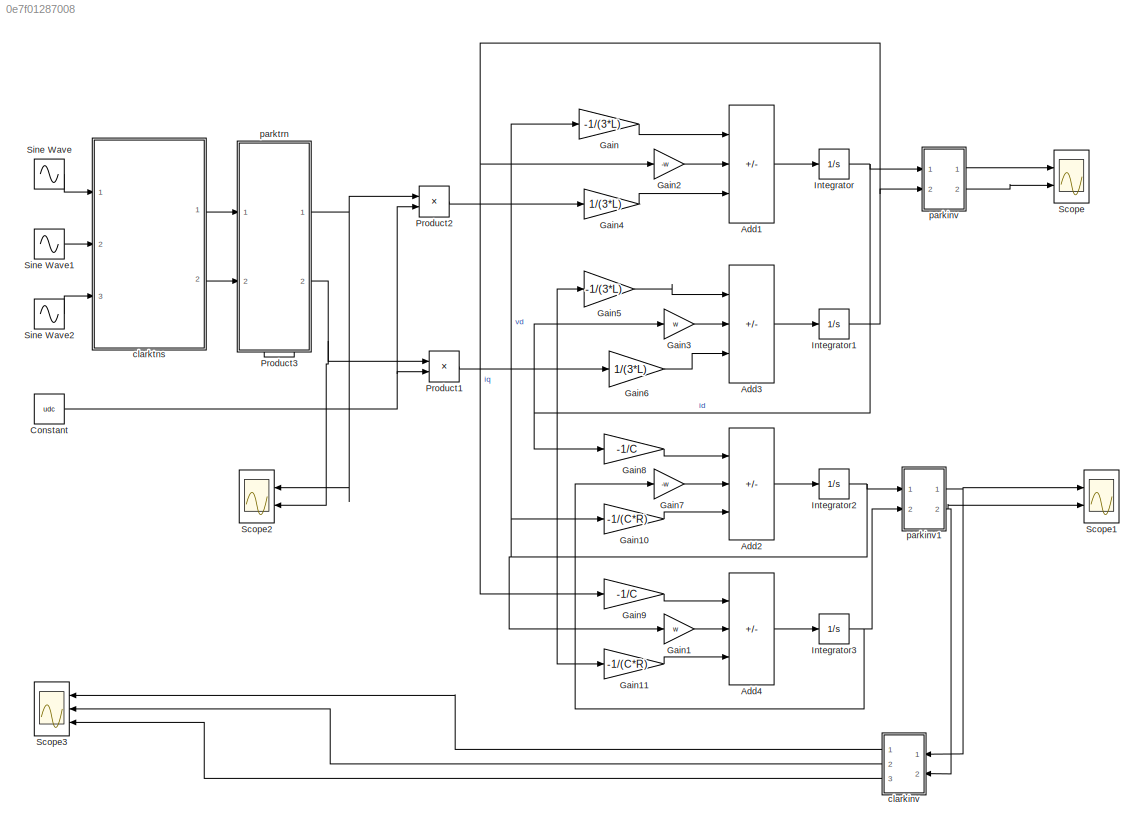
MODEL slx_0e7f01287008
KIND model
CONFIG AbsTol = auto
CONFIG EnableMultiTasking = off
CONFIG FixedStep = auto
CONFIG MaxStep = auto
CONFIG MinStep = auto
CONFIG RelTol = 1e-3
CONFIG SampleTimeConstraint = Unconstrained
CONFIG Solver = VariableStepAuto
CONFIG SolverName = VariableStepAuto
CONFIG StartTime = 0.0
CONFIG StopTime = 10.0
WORKSPACE source: mxarray member
WORKSPACE C = 1e-06
WORKSPACE L = 0.001
WORKSPACE R = 20
WORKSPACE udc = 100
WORKSPACE w = 1
BLOCK [Sum] Add1
  IconShape = rectangular
  Inputs = +-+
  Ports = [3, 1]
BLOCK [Sum] Add2
  IconShape = rectangular
  Inputs = +--
  Ports = [3, 1]
BLOCK [Sum] Add3
  IconShape = rectangular
  Inputs = +-+
  Ports = [3, 1]
BLOCK [Sum] Add4
  IconShape = rectangular
  Inputs = +--
  Ports = [3, 1]
BLOCK [Constant] Constant
  Value = udc
BLOCK [Gain] Gain
  Gain = -1/(3*L)
BLOCK [Gain] Gain1
  Gain = w
BLOCK [Gain] Gain10
  Gain = -1/(C*R)
BLOCK [Gain] Gain11
  Gain = -1/(C*R)
BLOCK [Gain] Gain2
  Gain = -w
BLOCK [Gain] Gain3
  Gain = w
BLOCK [Gain] Gain4
  Gain = 1/(3*L)
BLOCK [Gain] Gain5
  Gain = -1/(3*L)
BLOCK [Gain] Gain6
  Gain = 1/(3*L)
BLOCK [Gain] Gain7
  Gain = -w
BLOCK [Gain] Gain8
  Gain = -1/C
BLOCK [Gain] Gain9
  Gain = -1/C
BLOCK [Integrator] Integrator
  Ports = [1, 1]
BLOCK [Integrator] Integrator1
  Ports = [1, 1]
BLOCK [Integrator] Integrator2
  Ports = [1, 1]
BLOCK [Integrator] Integrator3
  Ports = [1, 1]
BLOCK [Product] Product1
  Ports = [2, 1]
  RndMeth = Zero
BLOCK [Product] Product2
  Ports = [2, 1]
  RndMeth = Zero
BLOCK [Product] Product3
  Ports = [2, 1]
  RndMeth = Zero
BLOCK [Scope] Scope
  Floating = off
  NumInputPorts = 2
  Ports = [2]
  ScopeSpecificationString = Simulink.scopes.TimeScopeBlockCfg('CurrentConfiguration', extmgr.ConfigurationSet(extmgr.Configuration('Core','General UI',true),extmgr.Configuration('Core','Source UI',true),extmgr.Configuration('Sources','WiredSimulink',true),extmgr.Configuration('Visuals','Time Domain',true),extmgr.Configuration('Tools','Plot Navigation',true),extmgr.Configuration('Tools','Measurements',true)),'Version','2020a'...<+1ch>
BLOCK [Scope] Scope1
  Floating = off
  NumInputPorts = 2
  Ports = [2]
  ScopeSpecificationString = Simulink.scopes.TimeScopeBlockCfg('CurrentConfiguration', extmgr.ConfigurationSet(extmgr.Configuration('Core','General UI',true),extmgr.Configuration('Core','Source UI',true),extmgr.Configuration('Sources','WiredSimulink',true,'DataLoggingVariableName','ScopeData1'),extmgr.Configuration('Visuals','Time Domain',true,'SerializedDisplays',{struct('MinYLimReal','-1.00000','MaxYLimReal','1.00000','YLab...<+1406ch>
BLOCK [Scope] Scope2
  Floating = off
  NumInputPorts = 2
  Ports = [2]
  ScopeSpecificationString = Simulink.scopes.TimeScopeBlockCfg('CurrentConfiguration', extmgr.ConfigurationSet(extmgr.Configuration('Core','General UI',true),extmgr.Configuration('Core','Source UI',true),extmgr.Configuration('Sources','WiredSimulink',true,'DataLoggingVariableName','ScopeData2'),extmgr.Configuration('Visuals','Time Domain',true,'SerializedDisplays',{struct('MinYLimReal','-0.7955','MaxYLimReal','0.08839','YLabe...<+1400ch>
BLOCK [Scope] Scope3
  Floating = off
  NumInputPorts = 3
  Ports = [3]
  ScopeSpecificationString = Simulink.scopes.TimeScopeBlockCfg('CurrentConfiguration', extmgr.ConfigurationSet(extmgr.Configuration('Core','General UI',true),extmgr.Configuration('Core','Source UI',true),extmgr.Configuration('Sources','WiredSimulink',true,'DataLoggingVariableName','ScopeData3'),extmgr.Configuration('Visuals','Time Domain',true,'SerializedDisplays',{struct('MinYLimReal','-29243572319203074145516336473236854404...<+3233ch>
BLOCK [Sin] Sine Wave
  Frequency = 2*pi*50
  Ports = [0, 1]
  SampleTime = 0
BLOCK [Sin] Sine Wave1
  Frequency = 2*pi*50
  Phase = pi/3
  Ports = [0, 1]
  SampleTime = 0
BLOCK [Sin] Sine Wave2
  Frequency = 2*pi*50
  Phase = 2*pi/3
  Ports = [0, 1]
  SampleTime = 0
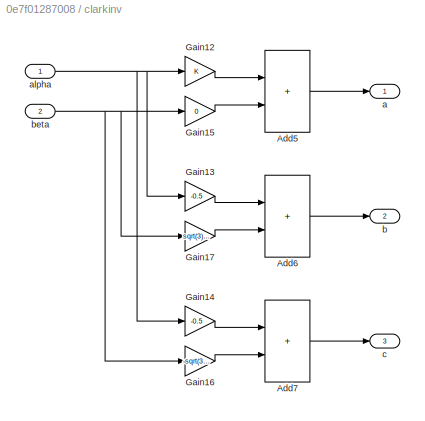
BLOCK [SubSystem] clarkinv
  Ports = [2, 3]
  RequestExecContextInheritance = off
BLOCK [Sum] clarkinv/Add5
  IconShape = rectangular
  Ports = [2, 1]
BLOCK [Sum] clarkinv/Add6
  IconShape = rectangular
  Ports = [2, 1]
BLOCK [Sum] clarkinv/Add7
  IconShape = rectangular
  Ports = [2, 1]
BLOCK [Gain] clarkinv/Gain12
BLOCK [Gain] clarkinv/Gain13
  Gain = -0.5
BLOCK [Gain] clarkinv/Gain14
  Gain = -0.5
BLOCK [Gain] clarkinv/Gain15
  Gain = 0
BLOCK [Gain] clarkinv/Gain16
  Gain = -sqrt(3)/2
BLOCK [Gain] clarkinv/Gain17
  Gain = sqrt(3)/2
BLOCK [Outport] clarkinv/a
BLOCK [Inport] clarkinv/alpha
BLOCK [Outport] clarkinv/b
  Port = 2
BLOCK [Inport] clarkinv/beta
  Port = 2
BLOCK [Outport] clarkinv/c
  Port = 3
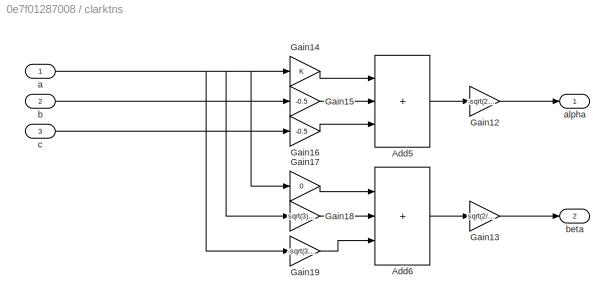
BLOCK [SubSystem] clarktns
  Ports = [3, 2]
  RequestExecContextInheritance = off
BLOCK [Sum] clarktns/Add5
  IconShape = rectangular
  Inputs = +++
  Ports = [3, 1]
BLOCK [Sum] clarktns/Add6
  IconShape = rectangular
  Inputs = +++
  Ports = [3, 1]
BLOCK [Gain] clarktns/Gain12
  Gain = -sqrt(2/3)
BLOCK [Gain] clarktns/Gain13
  Gain = sqrt(2/3)
BLOCK [Gain] clarktns/Gain14
BLOCK [Gain] clarktns/Gain15
  Gain = -0.5
BLOCK [Gain] clarktns/Gain16
  Gain = -0.5
BLOCK [Gain] clarktns/Gain17
  Gain = 0
BLOCK [Gain] clarktns/Gain18
  Gain = sqrt(3)/2
BLOCK [Gain] clarktns/Gain19
  Gain = -sqrt(3)/2
BLOCK [Inport] clarktns/a
BLOCK [Outport] clarktns/alpha
BLOCK [Inport] clarktns/b
  Port = 2
BLOCK [Outport] clarktns/beta
  Port = 2
BLOCK [Inport] clarktns/c
  Port = 3
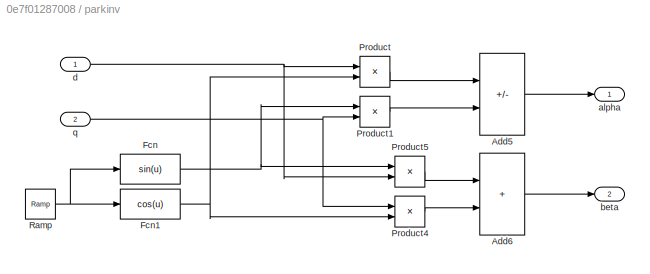
BLOCK [SubSystem] parkinv
  Ports = [2, 2]
  RequestExecContextInheritance = off
BLOCK [Sum] parkinv/Add5
  IconShape = rectangular
  Inputs = +-
  Ports = [2, 1]
BLOCK [Sum] parkinv/Add6
  IconShape = rectangular
  Ports = [2, 1]
BLOCK [Fcn] parkinv/Fcn
  Expr = sin(u)
BLOCK [Fcn] parkinv/Fcn1
  Expr = cos(u)
BLOCK [Product] parkinv/Product
  Ports = [2, 1]
  RndMeth = Zero
BLOCK [Product] parkinv/Product1
  Ports = [2, 1]
  RndMeth = Zero
BLOCK [Product] parkinv/Product4
  Ports = [2, 1]
  RndMeth = Zero
BLOCK [Product] parkinv/Product5
  Ports = [2, 1]
  RndMeth = Zero
BLOCK [Reference] parkinv/Ramp  REF=simulink/Sources/Ramp
  Ports = [0, 1]
  SourceBlock = simulink/Sources/Ramp
  SourceProductBaseCode = SL
  SourceType = Ramp
BLOCK [Outport] parkinv/alpha
BLOCK [Outport] parkinv/beta
  Port = 2
BLOCK [Inport] parkinv/d
BLOCK [Inport] parkinv/q
  Port = 2
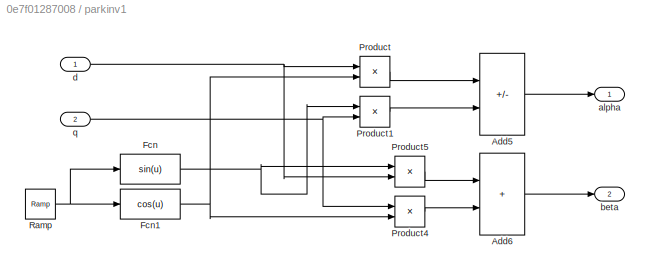
BLOCK [SubSystem] parkinv1
  Ports = [2, 2]
  RequestExecContextInheritance = off
BLOCK [Sum] parkinv1/Add5
  IconShape = rectangular
  Inputs = +-
  Ports = [2, 1]
BLOCK [Sum] parkinv1/Add6
  IconShape = rectangular
  Ports = [2, 1]
BLOCK [Fcn] parkinv1/Fcn
  Expr = sin(u)
BLOCK [Fcn] parkinv1/Fcn1
  Expr = cos(u)
BLOCK [Product] parkinv1/Product
  Ports = [2, 1]
  RndMeth = Zero
BLOCK [Product] parkinv1/Product1
  Ports = [2, 1]
  RndMeth = Zero
BLOCK [Product] parkinv1/Product4
  Ports = [2, 1]
  RndMeth = Zero
BLOCK [Product] parkinv1/Product5
  Ports = [2, 1]
  RndMeth = Zero
BLOCK [Reference] parkinv1/Ramp  REF=simulink/Sources/Ramp
  Ports = [0, 1]
  SourceBlock = simulink/Sources/Ramp
  SourceProductBaseCode = SL
  SourceType = Ramp
BLOCK [Outport] parkinv1/alpha
BLOCK [Outport] parkinv1/beta
  Port = 2
BLOCK [Inport] parkinv1/d
BLOCK [Inport] parkinv1/q
  Port = 2
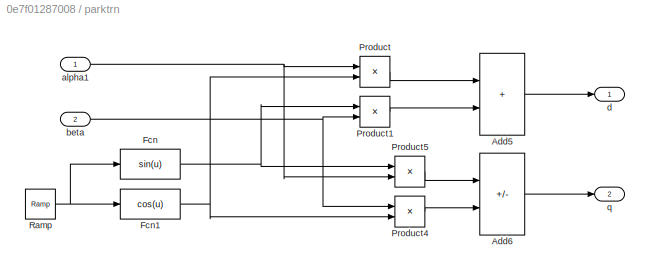
BLOCK [SubSystem] parktrn
  Ports = [2, 2]
  RequestExecContextInheritance = off
BLOCK [Sum] parktrn/Add5
  IconShape = rectangular
  Ports = [2, 1]
BLOCK [Sum] parktrn/Add6
  IconShape = rectangular
  Inputs = -+
  Ports = [2, 1]
BLOCK [Fcn] parktrn/Fcn
  Expr = sin(u)
BLOCK [Fcn] parktrn/Fcn1
  Expr = cos(u)
BLOCK [Product] parktrn/Product
  Ports = [2, 1]
  RndMeth = Zero
BLOCK [Product] parktrn/Product1
  Ports = [2, 1]
  RndMeth = Zero
BLOCK [Product] parktrn/Product4
  Ports = [2, 1]
  RndMeth = Zero
BLOCK [Product] parktrn/Product5
  Ports = [2, 1]
  RndMeth = Zero
BLOCK [Reference] parktrn/Ramp  REF=simulink/Sources/Ramp
  Ports = [0, 1]
  SourceBlock = simulink/Sources/Ramp
  SourceProductBaseCode = SL
  SourceType = Ramp
BLOCK [Inport] parktrn/alpha1
BLOCK [Inport] parktrn/beta
  Port = 2
BLOCK [Outport] parktrn/d
BLOCK [Outport] parktrn/q
  Port = 2
LINE Add1:1 -> Integrator:1
LINE Add2:1 -> Integrator2:1
LINE Add3:1 -> Integrator1:1
LINE Add4:1 -> Integrator3:1
NET Constant:1 -> Product1:2, Product2:2
LINE Gain10:1 -> Add2:3
LINE Gain11:1 -> Add4:3
LINE Gain1:1 -> Add4:2
LINE Gain2:1 -> Add1:2
LINE Gain3:1 -> Add3:2
LINE Gain4:1 -> Add1:3
LINE Gain5:1 -> Add3:1
LINE Gain6:1 -> Add3:3
LINE Gain7:1 -> Add2:2
LINE Gain8:1 -> Add2:1
LINE Gain9:1 -> Add4:1
LINE Gain:1 -> Add1:1
NET Integrator1:1 -> Gain2:1, Gain9:1, parkinv:2
NET Integrator2:1 -> Gain10:1, Gain1:1, Gain:1, parkinv1:1
NET Integrator3:1 -> Gain11:1, Gain5:1, Gain7:1, parkinv1:2
NET Integrator:1 -> Gain3:1, Gain8:1, parkinv:1
LINE Product1:1 -> Gain6:1
LINE Product2:1 -> Gain4:1
LINE Sine Wave1:1 -> clarktns:2
LINE Sine Wave2:1 -> clarktns:3
LINE Sine Wave:1 -> clarktns:1
LINE clarkinv/Add5:1 -> clarkinv/a:1
LINE clarkinv/Add6:1 -> clarkinv/b:1
LINE clarkinv/Add7:1 -> clarkinv/c:1
LINE clarkinv/Gain12:1 -> clarkinv/Add5:1
LINE clarkinv/Gain13:1 -> clarkinv/Add6:1
LINE clarkinv/Gain14:1 -> clarkinv/Add7:1
LINE clarkinv/Gain15:1 -> clarkinv/Add5:2
LINE clarkinv/Gain16:1 -> clarkinv/Add7:2
LINE clarkinv/Gain17:1 -> clarkinv/Add6:2
NET clarkinv/alpha:1 -> clarkinv/Gain12:1, clarkinv/Gain13:1, clarkinv/Gain14:1
NET clarkinv/beta:1 -> clarkinv/Gain15:1, clarkinv/Gain16:1, clarkinv/Gain17:1
LINE clarkinv:1 -> Scope3:1
LINE clarkinv:2 -> Scope3:2
LINE clarkinv:3 -> Scope3:3
LINE clarktns/Add5:1 -> clarktns/Gain12:1
LINE clarktns/Add6:1 -> clarktns/Gain13:1
LINE clarktns/Gain12:1 -> clarktns/alpha:1
LINE clarktns/Gain13:1 -> clarktns/beta:1
LINE clarktns/Gain14:1 -> clarktns/Add5:1
LINE clarktns/Gain15:1 -> clarktns/Add5:2
LINE clarktns/Gain16:1 -> clarktns/Add5:3
LINE clarktns/Gain17:1 -> clarktns/Add6:1
LINE clarktns/Gain18:1 -> clarktns/Add6:2
LINE clarktns/Gain19:1 -> clarktns/Add6:3
NET clarktns/a:1 -> clarktns/Gain14:1, clarktns/Gain17:1, clarktns/Gain18:1, clarktns/Gain19:1
LINE clarktns/b:1 -> clarktns/Gain15:1
LINE clarktns/c:1 -> clarktns/Gain16:1
LINE clarktns:1 -> parktrn:1
LINE clarktns:2 -> parktrn:2
LINE parkinv/Add5:1 -> parkinv/alpha:1
LINE parkinv/Add6:1 -> parkinv/beta:1
NET parkinv/Fcn1:1 -> parkinv/Product4:2, parkinv/Product:2
NET parkinv/Fcn:1 -> parkinv/Product1:1, parkinv/Product5:1
LINE parkinv/Product1:1 -> parkinv/Add5:2
LINE parkinv/Product4:1 -> parkinv/Add6:2
LINE parkinv/Product5:1 -> parkinv/Add6:1
LINE parkinv/Product:1 -> parkinv/Add5:1
NET parkinv/Ramp:1 -> parkinv/Fcn1:1, parkinv/Fcn:1
NET parkinv/d:1 -> parkinv/Product5:2, parkinv/Product:1
NET parkinv/q:1 -> parkinv/Product1:2, parkinv/Product4:1
LINE parkinv1/Add5:1 -> parkinv1/alpha:1
LINE parkinv1/Add6:1 -> parkinv1/beta:1
NET parkinv1/Fcn1:1 -> parkinv1/Product4:2, parkinv1/Product:2
NET parkinv1/Fcn:1 -> parkinv1/Product1:1, parkinv1/Product5:1
LINE parkinv1/Product1:1 -> parkinv1/Add5:2
LINE parkinv1/Product4:1 -> parkinv1/Add6:2
LINE parkinv1/Product5:1 -> parkinv1/Add6:1
LINE parkinv1/Product:1 -> parkinv1/Add5:1
NET parkinv1/Ramp:1 -> parkinv1/Fcn1:1, parkinv1/Fcn:1
NET parkinv1/d:1 -> parkinv1/Product5:2, parkinv1/Product:1
NET parkinv1/q:1 -> parkinv1/Product1:2, parkinv1/Product4:1
NET parkinv1:1 -> Scope1:1, clarkinv:1
NET parkinv1:2 -> Scope1:2, clarkinv:2
LINE parkinv:1 -> Scope:1
LINE parkinv:2 -> Scope:2
LINE parktrn/Add5:1 -> parktrn/d:1
LINE parktrn/Add6:1 -> parktrn/q:1
NET parktrn/Fcn1:1 -> parktrn/Product4:2, parktrn/Product:2
NET parktrn/Fcn:1 -> parktrn/Product1:1, parktrn/Product5:1
LINE parktrn/Product1:1 -> parktrn/Add5:2
LINE parktrn/Product4:1 -> parktrn/Add6:2
LINE parktrn/Product5:1 -> parktrn/Add6:1
LINE parktrn/Product:1 -> parktrn/Add5:1
NET parktrn/Ramp:1 -> parktrn/Fcn1:1, parktrn/Fcn:1
NET parktrn/alpha1:1 -> parktrn/Product5:2, parktrn/Product:1
NET parktrn/beta:1 -> parktrn/Product1:2, parktrn/Product4:1
NET parktrn:1 -> Product2:1, Scope2:1
NET parktrn:2 -> Product1:1, Scope2:2
note: NET lines group one-source signal fan-out (src -> all destinations, sorted); 1:1 wires keep LINE
